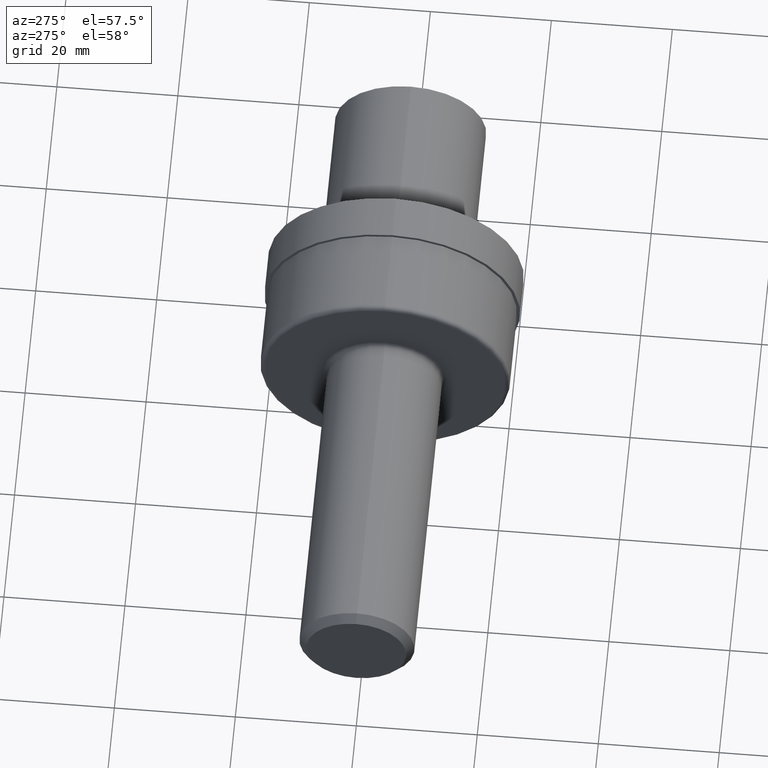
[diagram: clean part render]
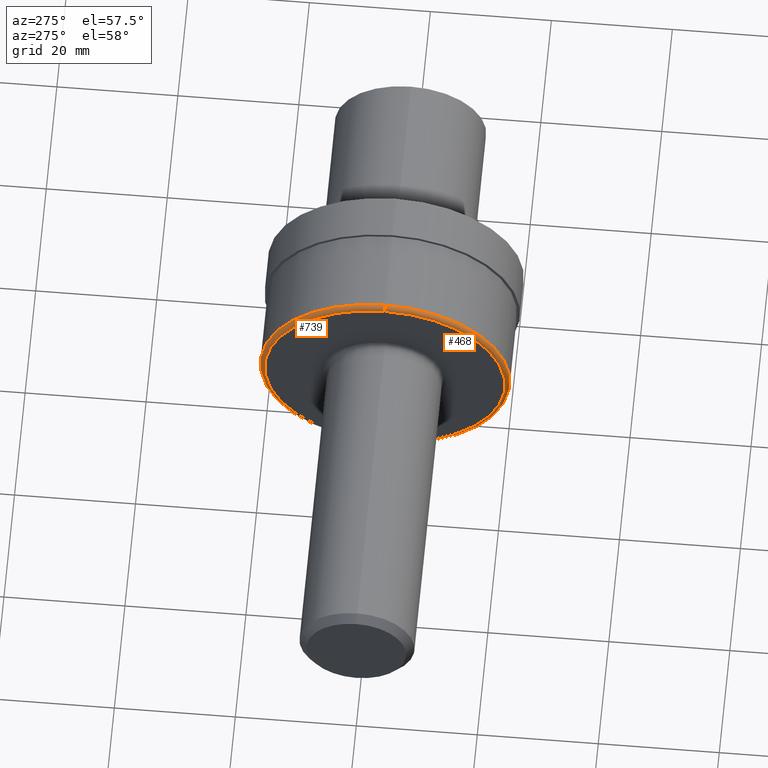
[diagram: same view with one multi-face feature highlighted, each face labeled with its STEP entity id]
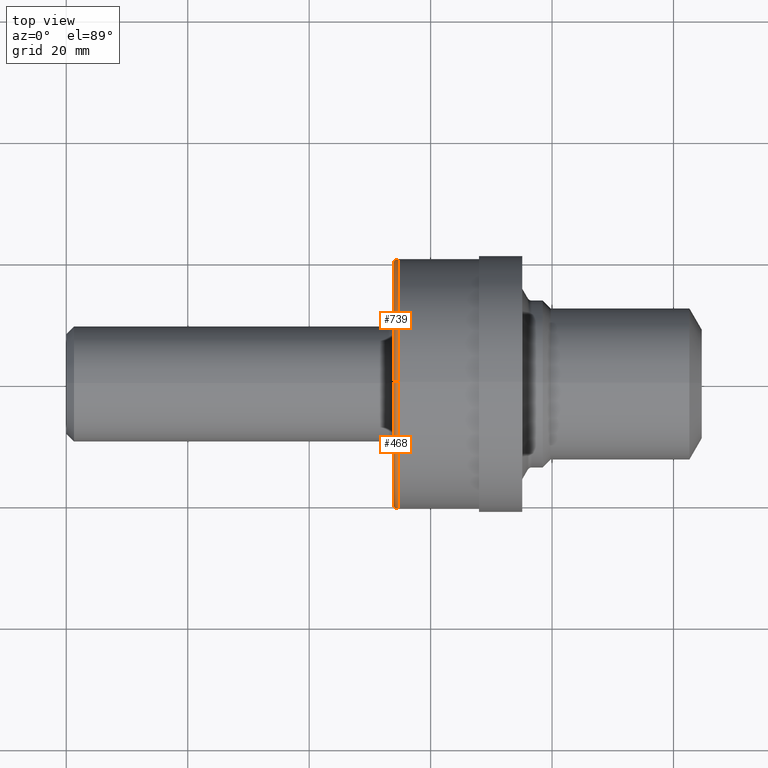
[diagram: same view with one multi-face feature highlighted, each face labeled with its STEP entity id]
A machine part, auxiliary view. The highlighted faces form ONE feature: a constant-radius fillet chain: 2 tangent blend faces with common blend radius 0.762 mm. The faces share edges in the B-rep.
A second angle (top view) of the same feature is appended — it is thin or edge-on in the first view.
Their STEP definitions:
[1] entity #739 (Torus):
#18 = AXIS2_PLACEMENT_3D ( 'NONE', #779, #473, #720 ) ;
#32 = ORIENTED_EDGE ( 'NONE', *, *, #432, .T. ) ;
#70 = CIRCLE ( 'NONE', #401, 0.02999999999999995379 ) ;
#92 = DIRECTION ( 'NONE',  ( 0.000000000000000000, 0.000000000000000000, 1.000000000000000000 ) ) ;
#219 = VERTEX_POINT ( 'NONE', #378 ) ;
#237 = ORIENTED_EDGE ( 'NONE', *, *, #414, .T. ) ;
#280 = DIRECTION ( 'NONE',  ( 0.000000000000000000, 0.000000000000000000, 1.000000000000000000 ) ) ;
#285 = AXIS2_PLACEMENT_3D ( 'NONE', #461, #467, #280 ) ;
#286 = EDGE_CURVE ( 'NONE', #219, #484, #70, .T. ) ;
#321 = DIRECTION ( 'NONE',  ( 0.000000000000000000, 0.000000000000000000, -1.000000000000000000 ) ) ;
#322 = AXIS2_PLACEMENT_3D ( 'NONE', #593, #523, #470 ) ;
#350 = CIRCLE ( 'NONE', #322, 0.02999999999999995379 ) ;
#357 = ORIENTED_EDGE ( 'NONE', *, *, #631, .F. ) ;
#373 = CIRCLE ( 'NONE', #18, 0.7825000000000000844 ) ;
#378 = CARTESIAN_POINT ( 'NONE',  ( 2.149999999999999911, 0.000000000000000000, 0.8125000000000000000 ) ) ;
#379 = EDGE_LOOP ( 'NONE', ( #32, #237, #357, #625 ) ) ;
#401 = AXIS2_PLACEMENT_3D ( 'NONE', #633, #443, #321 ) ;
#408 = CARTESIAN_POINT ( 'NONE',  ( 2.149999999999999911, 0.000000000000000000, 0.000000000000000000 ) ) ;
#414 = EDGE_CURVE ( 'NONE', #818, #573, #350, .T. ) ;
#426 = CARTESIAN_POINT ( 'NONE',  ( 2.120000000000000107, 0.000000000000000000, 0.7825000000000000844 ) ) ;
#431 = AXIS2_PLACEMENT_3D ( 'NONE', #408, #662, #92 ) ;
#432 = EDGE_CURVE ( 'NONE', #219, #818, #790, .T. ) ;
#443 = DIRECTION ( 'NONE',  ( 0.000000000000000000, -1.000000000000000000, 0.000000000000000000 ) ) ;
#461 = CARTESIAN_POINT ( 'NONE',  ( 2.149999999999999911, 0.000000000000000000, 0.000000000000000000 ) ) ;
#467 = DIRECTION ( 'NONE',  ( -1.000000000000000000, -0.000000000000000000, -0.000000000000000000 ) ) ;
#470 = DIRECTION ( 'NONE',  ( 0.000000000000000000, -1.224646799147354933E-16, 1.000000000000000000 ) ) ;
#473 = DIRECTION ( 'NONE',  ( -1.000000000000000000, -0.000000000000000000, -0.000000000000000000 ) ) ;
#484 = VERTEX_POINT ( 'NONE', #426 ) ;
#523 = DIRECTION ( 'NONE',  ( -0.000000000000000000, 1.000000000000000000, 1.224646799147353207E-16 ) ) ;
#573 = VERTEX_POINT ( 'NONE', #710 ) ;
#593 = CARTESIAN_POINT ( 'NONE',  ( 2.149999999999999911, 9.582861203328039197E-17, -0.7825000000000000844 ) ) ;
#625 = ORIENTED_EDGE ( 'NONE', *, *, #286, .F. ) ;
#631 = EDGE_CURVE ( 'NONE', #484, #573, #373, .T. ) ;
#633 = CARTESIAN_POINT ( 'NONE',  ( 2.149999999999999911, 0.000000000000000000, 0.7825000000000000844 ) ) ;
#641 = TOROIDAL_SURFACE ( 'NONE', #285, 0.7825000000000000844, 0.02999999999999995379 ) ;
#661 = CARTESIAN_POINT ( 'NONE',  ( 2.149999999999999911, 9.950255243072245579E-17, -0.8125000000000000000 ) ) ;
#662 = DIRECTION ( 'NONE',  ( -1.000000000000000000, -0.000000000000000000, -0.000000000000000000 ) ) ;
#710 = CARTESIAN_POINT ( 'NONE',  ( 2.120000000000000107, 9.766558223200143004E-17, -0.7825000000000000844 ) ) ;
#720 = DIRECTION ( 'NONE',  ( 0.000000000000000000, 0.000000000000000000, 1.000000000000000000 ) ) ;
#739 = ADVANCED_FACE ( 'NONE', ( #772 ), #641, .T. ) ;
#772 = FACE_OUTER_BOUND ( 'NONE', #379, .T. ) ;
#779 = CARTESIAN_POINT ( 'NONE',  ( 2.120000000000000107, 0.000000000000000000, 0.000000000000000000 ) ) ;
#790 = CIRCLE ( 'NONE', #431, 0.8125000000000000000 ) ;
#818 = VERTEX_POINT ( 'NONE', #661 ) ;
[2] entity #468 (Torus):
#34 = DIRECTION ( 'NONE',  ( -1.000000000000000000, -0.000000000000000000, -0.000000000000000000 ) ) ;
#61 = CIRCLE ( 'NONE', #524, 0.8125000000000000000 ) ;
#70 = CIRCLE ( 'NONE', #401, 0.02999999999999995379 ) ;
#81 = DIRECTION ( 'NONE',  ( -1.000000000000000000, -0.000000000000000000, -0.000000000000000000 ) ) ;
#105 = DIRECTION ( 'NONE',  ( 0.000000000000000000, 0.000000000000000000, 1.000000000000000000 ) ) ;
#186 = EDGE_CURVE ( 'NONE', #573, #484, #348, .T. ) ;
#219 = VERTEX_POINT ( 'NONE', #378 ) ;
#227 = EDGE_LOOP ( 'NONE', ( #751, #614, #417, #448 ) ) ;
#230 = TOROIDAL_SURFACE ( 'NONE', #607, 0.7825000000000000844, 0.02999999999999995379 ) ;
#253 = DIRECTION ( 'NONE',  ( 0.000000000000000000, 0.000000000000000000, 1.000000000000000000 ) ) ;
#267 = AXIS2_PLACEMENT_3D ( 'NONE', #306, #694, #253 ) ;
#286 = EDGE_CURVE ( 'NONE', #219, #484, #70, .T. ) ;
#306 = CARTESIAN_POINT ( 'NONE',  ( 2.120000000000000107, 0.000000000000000000, 0.000000000000000000 ) ) ;
#321 = DIRECTION ( 'NONE',  ( 0.000000000000000000, 0.000000000000000000, -1.000000000000000000 ) ) ;
#322 = AXIS2_PLACEMENT_3D ( 'NONE', #593, #523, #470 ) ;
#338 = CARTESIAN_POINT ( 'NONE',  ( 2.149999999999999911, 0.000000000000000000, 0.000000000000000000 ) ) ;
#348 = CIRCLE ( 'NONE', #267, 0.7825000000000000844 ) ;
#350 = CIRCLE ( 'NONE', #322, 0.02999999999999995379 ) ;
#378 = CARTESIAN_POINT ( 'NONE',  ( 2.149999999999999911, 0.000000000000000000, 0.8125000000000000000 ) ) ;
#401 = AXIS2_PLACEMENT_3D ( 'NONE', #633, #443, #321 ) ;
#411 = FACE_OUTER_BOUND ( 'NONE', #227, .T. ) ;
#414 = EDGE_CURVE ( 'NONE', #818, #573, #350, .T. ) ;
#417 = ORIENTED_EDGE ( 'NONE', *, *, #286, .T. ) ;
#426 = CARTESIAN_POINT ( 'NONE',  ( 2.120000000000000107, 0.000000000000000000, 0.7825000000000000844 ) ) ;
#443 = DIRECTION ( 'NONE',  ( 0.000000000000000000, -1.000000000000000000, 0.000000000000000000 ) ) ;
#448 = ORIENTED_EDGE ( 'NONE', *, *, #186, .F. ) ;
#468 = ADVANCED_FACE ( 'NONE', ( #411 ), #230, .T. ) ;
#470 = DIRECTION ( 'NONE',  ( 0.000000000000000000, -1.224646799147354933E-16, 1.000000000000000000 ) ) ;
#484 = VERTEX_POINT ( 'NONE', #426 ) ;
#523 = DIRECTION ( 'NONE',  ( -0.000000000000000000, 1.000000000000000000, 1.224646799147353207E-16 ) ) ;
#524 = AXIS2_PLACEMENT_3D ( 'NONE', #338, #81, #647 ) ;
#551 = CARTESIAN_POINT ( 'NONE',  ( 2.149999999999999911, 0.000000000000000000, 0.000000000000000000 ) ) ;
#573 = VERTEX_POINT ( 'NONE', #710 ) ;
#593 = CARTESIAN_POINT ( 'NONE',  ( 2.149999999999999911, 9.582861203328039197E-17, -0.7825000000000000844 ) ) ;
#607 = AXIS2_PLACEMENT_3D ( 'NONE', #551, #34, #105 ) ;
#614 = ORIENTED_EDGE ( 'NONE', *, *, #776, .T. ) ;
#633 = CARTESIAN_POINT ( 'NONE',  ( 2.149999999999999911, 0.000000000000000000, 0.7825000000000000844 ) ) ;
#647 = DIRECTION ( 'NONE',  ( 0.000000000000000000, 0.000000000000000000, 1.000000000000000000 ) ) ;
#661 = CARTESIAN_POINT ( 'NONE',  ( 2.149999999999999911, 9.950255243072245579E-17, -0.8125000000000000000 ) ) ;
#694 = DIRECTION ( 'NONE',  ( -1.000000000000000000, -0.000000000000000000, -0.000000000000000000 ) ) ;
#710 = CARTESIAN_POINT ( 'NONE',  ( 2.120000000000000107, 9.766558223200143004E-17, -0.7825000000000000844 ) ) ;
#751 = ORIENTED_EDGE ( 'NONE', *, *, #414, .F. ) ;
#776 = EDGE_CURVE ( 'NONE', #818, #219, #61, .T. ) ;
#818 = VERTEX_POINT ( 'NONE', #661 ) ;